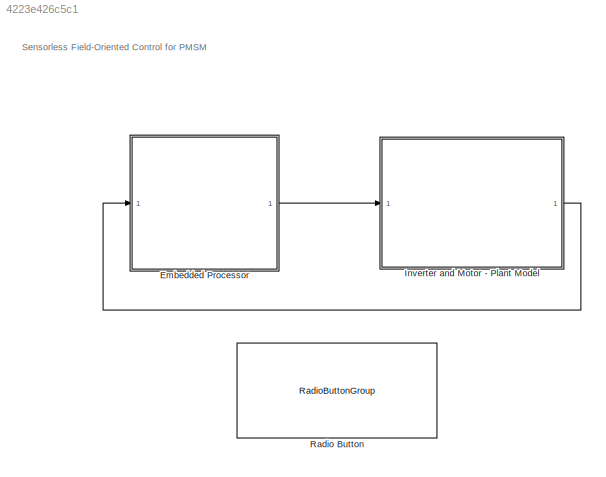
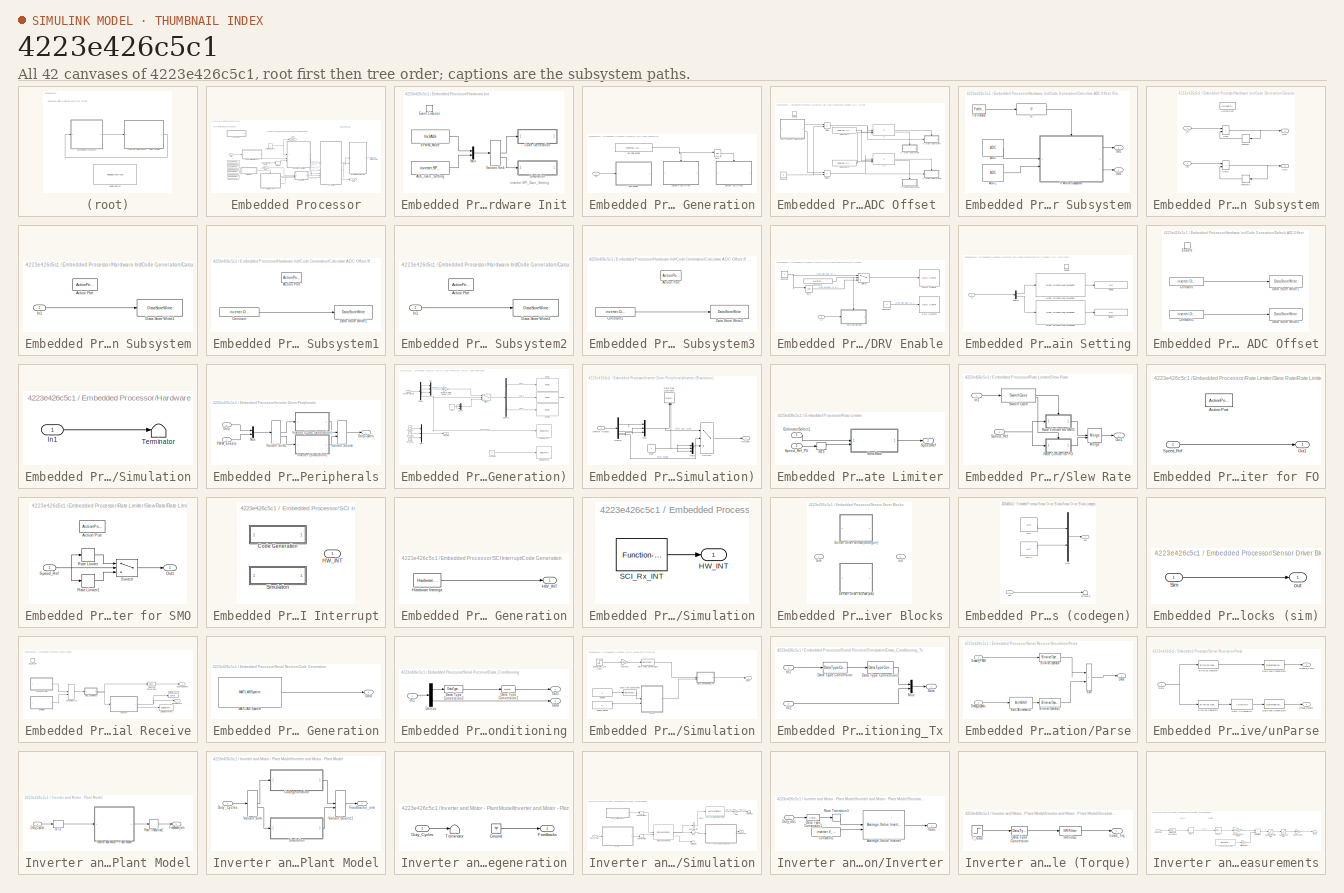
[diagram: thumbnail index - all 42 canvases of the model, root first then tree order]
MODEL slx_4223e426c5c1
KIND model
CONFIG AbsTol = auto
CONFIG EnableMultiTasking = off
CONFIG FixedStep = auto
CONFIG MaxStep = auto
CONFIG MinStep = auto
CONFIG RelTol = 1e-3
CONFIG SampleTimeConstraint = Unconstrained
CONFIG SolverName = FixedStepAuto
CONFIG StartTime = 0.0
CONFIG StopTime = 10.0
WORKSPACE source: external: MATLAB File  (data not in archive)
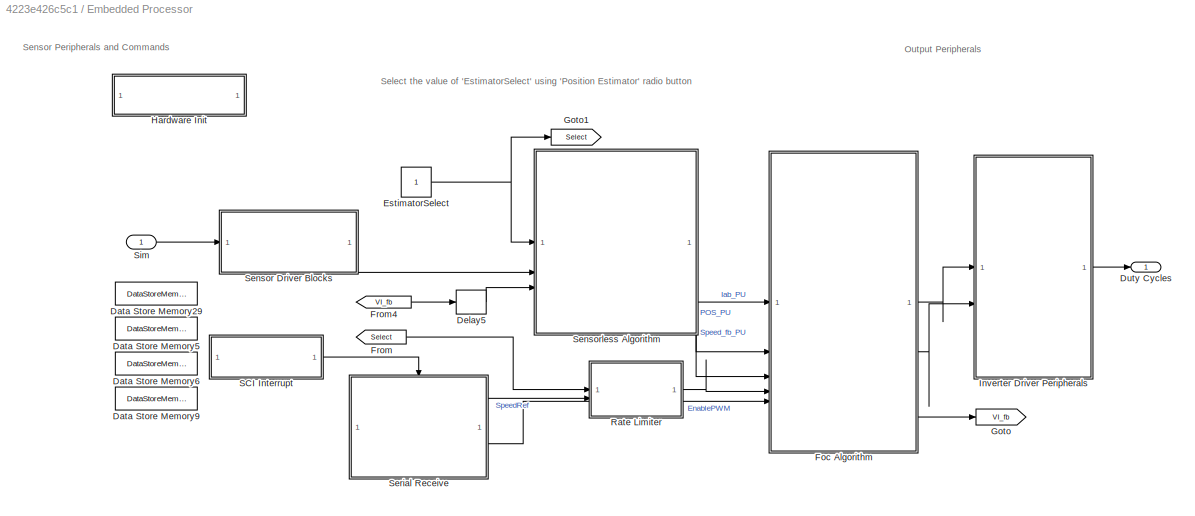
BLOCK [SubSystem] Embedded Processor
BLOCK [DataStoreMemory] Embedded Processor/Data Store Memory29
  DataStoreName = Enable
  InitialValue = 1
  OutDataTypeStr = boolean
  ReadBeforeWriteMsg = warning
  ShowAdditionalParam = off
  WriteAfterReadMsg = warning
  WriteAfterWriteMsg = warning
BLOCK [DataStoreMemory] Embedded Processor/Data Store Memory5
  DataStoreName = IaOffset
  InitialValue = inverter.CtSensAOffset
  ShowAdditionalParam = off
BLOCK [DataStoreMemory] Embedded Processor/Data Store Memory6
  DataStoreName = IbOffset
  InitialValue = inverter.CtSensBOffset
  ShowAdditionalParam = off
BLOCK [DataStoreMemory] Embedded Processor/Data Store Memory9
  DataStoreName = Debug_signals
  InitialValue = 1
  OutDataTypeStr = uint16
  ReadBeforeWriteMsg = warning
  ShowAdditionalParam = off
  WriteAfterReadMsg = warning
  WriteAfterWriteMsg = warning
BLOCK [Delay] Embedded Processor/Delay5
  DelayLength = 1
  InputPortMap = u0
BLOCK [Outport] Embedded Processor/Duty Cycles
BLOCK [Constant] Embedded Processor/EstimatorSelect
BLOCK [SubSystem] Embedded Processor/Foc  Algorithm
  ReferencedSubsystem = foc_sensorless_algorithm
BLOCK [From] Embedded Processor/From
  GotoTag = Select
BLOCK [From] Embedded Processor/From4
  GotoTag = VI_fb
BLOCK [Goto] Embedded Processor/Goto
  GotoTag = VI_fb
BLOCK [Goto] Embedded Processor/Goto1
  GotoTag = Select
BLOCK [SubSystem] Embedded Processor/Hardware Init
  TreatAsAtomicUnit = on
BLOCK [Constant] Embedded Processor/Hardware Init/6PWM_Mode
  OutDataTypeStr = uint16
  Priority = 1000
  SampleTime = -1
  Value = 0x3A16
BLOCK [Constant] Embedded Processor/Hardware Init/ADC_Gain_Setting
  OutDataTypeStr = uint16
  Priority = 1000
  SampleTime = -1
  Value = inverter.SPI_Gain_Setting
BLOCK [SubSystem] Embedded Processor/Hardware Init/Code Generation
BLOCK [Constant] Embedded Processor/Hardware Init/Code Generation/ADC Calib Enable
  OutDataTypeStr = Inherit: Inherit via back propagation
  Value = inverter.ADCOffsetCalibEnable
BLOCK [SubSystem] Embedded Processor/Hardware Init/Code Generation/Calculate ADC Offset 
  Priority = 1001
  TreatAsAtomicUnit = on
BLOCK [Constant] Embedded Processor/Hardware Init/Code Generation/Calculate ADC Offset /Constant
  Value = 8
BLOCK [Constant] Embedded Processor/Hardware Init/Code Generation/Calculate ADC Offset /Constant1
  OutDataTypeStr = Inherit: Inherit via back propagation
  Value = inverter.CtSensOffsetMax
BLOCK [Constant] Embedded Processor/Hardware Init/Code Generation/Calculate ADC Offset /Constant2
  OutDataTypeStr = Inherit: Inherit via back propagation
  Value = inverter.CtSensOffsetMin
BLOCK [Product] Embedded Processor/Hardware Init/Code Generation/Calculate ADC Offset /Divide
  Inputs = */
  OutDataTypeStr = uint16
BLOCK [Product] Embedded Processor/Hardware Init/Code Generation/Calculate ADC Offset /Divide1
  Inputs = */
  OutDataTypeStr = uint16
BLOCK [EnablePort] Embedded Processor/Hardware Init/Code Generation/Calculate ADC Offset /Enable
BLOCK [SubSystem] Embedded Processor/Hardware Init/Code Generation/Calculate ADC Offset /For Iterator Subsystem
  TreatAsAtomicUnit = on
BLOCK [Reference] Embedded Processor/Hardware Init/Code Generation/Calculate ADC Offset /For Iterator Subsystem/ADC  REF=peripheral_library_blocks/ADC
  SourceBlock = peripheral_library_blocks/ADC
  SourceType = ADC
BLOCK [Reference] Embedded Processor/Hardware Init/Code Generation/Calculate ADC Offset /For Iterator Subsystem/ADC1  REF=peripheral_library_blocks/ADC
  SourceBlock = peripheral_library_blocks/ADC
  SourceType = ADC
BLOCK [ForIterator] Embedded Processor/Hardware Init/Code Generation/Calculate ADC Offset /For Iterator Subsystem/For Iterator
  IterationLimit = 16
  IterationVariableDataType = uint16
BLOCK [If] Embedded Processor/Hardware Init/Code Generation/Calculate ADC Offset /For Iterator Subsystem/If
  IfExpression = u1 > 8
  ShowElse = off
BLOCK [SubSystem] Embedded Processor/Hardware Init/Code Generation/Calculate ADC Offset /For Iterator Subsystem/If Action Subsystem
  TreatAsAtomicUnit = on
BLOCK [ActionPort] Embedded Processor/Hardware Init/Code Generation/Calculate ADC Offset /For Iterator Subsystem/If Action Subsystem/Action Port
  ActionPortLabel = if(u1 > 8)
BLOCK [Inport] Embedded Processor/Hardware Init/Code Generation/Calculate ADC Offset /For Iterator Subsystem/If Action Subsystem/In1
BLOCK [Inport] Embedded Processor/Hardware Init/Code Generation/Calculate ADC Offset /For Iterator Subsystem/If Action Subsystem/In2
  Port = 2
BLOCK [Memory] Embedded Processor/Hardware Init/Code Generation/Calculate ADC Offset /For Iterator Subsystem/If Action Subsystem/Memory
  InheritSampleTime = on
  NameLocation = top
BLOCK [Memory] Embedded Processor/Hardware Init/Code Generation/Calculate ADC Offset /For Iterator Subsystem/If Action Subsystem/Memory1
  InheritSampleTime = on
  NameLocation = top
BLOCK [Outport] Embedded Processor/Hardware Init/Code Generation/Calculate ADC Offset /For Iterator Subsystem/If Action Subsystem/Out1
BLOCK [Outport] Embedded Processor/Hardware Init/Code Generation/Calculate ADC Offset /For Iterator Subsystem/If Action Subsystem/Out2
  Port = 2
BLOCK [Sum] Embedded Processor/Hardware Init/Code Generation/Calculate ADC Offset /For Iterator Subsystem/If Action Subsystem/Sum
  IconShape = rectangular
BLOCK [Sum] Embedded Processor/Hardware Init/Code Generation/Calculate ADC Offset /For Iterator Subsystem/If Action Subsystem/Sum1
  IconShape = rectangular
BLOCK [Outport] Embedded Processor/Hardware Init/Code Generation/Calculate ADC Offset /For Iterator Subsystem/Out1
BLOCK [Outport] Embedded Processor/Hardware Init/Code Generation/Calculate ADC Offset /For Iterator Subsystem/Out2
  Port = 2
BLOCK [If] Embedded Processor/Hardware Init/Code Generation/Calculate ADC Offset /If
  IfExpression = u1 > u3 & u1 < u2
  NumInputs = 3
BLOCK [SubSystem] Embedded Processor/Hardware Init/Code Generation/Calculate ADC Offset /If Action Subsystem
  TreatAsAtomicUnit = on
BLOCK [ActionPort] Embedded Processor/Hardware Init/Code Generation/Calculate ADC Offset /If Action Subsystem/Action Port
  ActionPortLabel = if(u1 > u3 & u1 < u2)
BLOCK [DataStoreWrite] Embedded Processor/Hardware Init/Code Generation/Calculate ADC Offset /If Action Subsystem/Data Store Write1
  DataStoreName = IaOffset
  IndexOptions = Index vector (dialog)
  Indices = 1
  OutputSizes = 1
BLOCK [Inport] Embedded Processor/Hardware Init/Code Generation/Calculate ADC Offset /If Action Subsystem/In1
BLOCK [SubSystem] Embedded Processor/Hardware Init/Code Generation/Calculate ADC Offset /If Action Subsystem1
  TreatAsAtomicUnit = on
BLOCK [ActionPort] Embedded Processor/Hardware Init/Code Generation/Calculate ADC Offset /If Action Subsystem1/Action Port
  ActionPortLabel = else
BLOCK [Constant] Embedded Processor/Hardware Init/Code Generation/Calculate ADC Offset /If Action Subsystem1/Constant
  OutDataTypeStr = Inherit: Inherit via back propagation
  Value = inverter.CtSensAOffset
BLOCK [DataStoreWrite] Embedded Processor/Hardware Init/Code Generation/Calculate ADC Offset /If Action Subsystem1/Data Store Write1
  DataStoreName = IaOffset
  IndexOptions = Index vector (dialog)
  Indices = 1
  OutputSizes = 1
BLOCK [SubSystem] Embedded Processor/Hardware Init/Code Generation/Calculate ADC Offset /If Action Subsystem2
  TreatAsAtomicUnit = on
BLOCK [ActionPort] Embedded Processor/Hardware Init/Code Generation/Calculate ADC Offset /If Action Subsystem2/Action Port
  ActionPortLabel = if(u1 > u3 & u1 < u2)
BLOCK [DataStoreWrite] Embedded Processor/Hardware Init/Code Generation/Calculate ADC Offset /If Action Subsystem2/Data Store Write2
  DataStoreName = IbOffset
  IndexOptions = Index vector (dialog)
  Indices = 1
  OutputSizes = 1
BLOCK [Inport] Embedded Processor/Hardware Init/Code Generation/Calculate ADC Offset /If Action Subsystem2/In1
BLOCK [SubSystem] Embedded Processor/Hardware Init/Code Generation/Calculate ADC Offset /If Action Subsystem3
  TreatAsAtomicUnit = on
BLOCK [ActionPort] Embedded Processor/Hardware Init/Code Generation/Calculate ADC Offset /If Action Subsystem3/Action Port
  ActionPortLabel = else
BLOCK [Constant] Embedded Processor/Hardware Init/Code Generation/Calculate ADC Offset /If Action Subsystem3/Constant1
  OutDataTypeStr = Inherit: Inherit via back propagation
  Value = inverter.CtSensBOffset
BLOCK [DataStoreWrite] Embedded Processor/Hardware Init/Code Generation/Calculate ADC Offset /If Action Subsystem3/Data Store Write2
  DataStoreName = IbOffset
  IndexOptions = Index vector (dialog)
  Indices = 1
  OutputSizes = 1
BLOCK [If] Embedded Processor/Hardware Init/Code Generation/Calculate ADC Offset /If1
  IfExpression = u1 > u3 & u1 < u2
  NumInputs = 3
BLOCK [SubSystem] Embedded Processor/Hardware Init/Code Generation/DRV Enable
  Priority = 1
BLOCK [SubSystem] Embedded Processor/Hardware Init/Code Generation/DRV Enable/ADC Gain Setting
BLOCK [Demux] Embedded Processor/Hardware Init/Code Generation/DRV Enable/ADC Gain Setting/Demux
  Outputs = 2
BLOCK [Display] Embedded Processor/Hardware Init/Code Generation/DRV Enable/ADC Gain Setting/Display
  Decimation = 1
  Format = hex (Stored Integer)
BLOCK [Display] Embedded Processor/Hardware Init/Code Generation/DRV Enable/ADC Gain Setting/Display1
  Decimation = 1
  Format = hex (Stored Integer)
BLOCK [EnablePort] Embedded Processor/Hardware Init/Code Generation/DRV Enable/ADC Gain Setting/Enable
BLOCK [Inport] Embedded Processor/Hardware Init/Code Generation/DRV Enable/ADC Gain Setting/In
BLOCK [Reference] Embedded Processor/Hardware Init/Code Generation/DRV Enable/ADC Gain Setting/MCSPI CONTROLLER TRANSFER  REF=peripheral_library_blocks/MCSPI CONTROLLER TRANSFER
  SourceBlock = peripheral_library_blocks/MCSPI CONTROLLER TRANSFER
  SourceType = MCSPI_CONTROLLER_TRANSFER
BLOCK [Reference] Embedded Processor/Hardware Init/Code Generation/DRV Enable/ADC Gain Setting/MCSPI CONTROLLER TRANSFER1  REF=peripheral_library_blocks/MCSPI CONTROLLER TRANSFER
  SourceBlock = peripheral_library_blocks/MCSPI CONTROLLER TRANSFER
  SourceType = MCSPI_CONTROLLER_TRANSFER
BLOCK [Constant] Embedded Processor/Hardware Init/Code Generation/DRV Enable/Constant
  OutDataTypeStr = Inherit: Inherit via back propagation
BLOCK [Constant] Embedded Processor/Hardware Init/Code Generation/DRV Enable/Constant1
  Value = inverter.EnableLogic
BLOCK [Constant] Embedded Processor/Hardware Init/Code Generation/DRV Enable/Constant2
  OutDataTypeStr = Inherit: Inherit via back propagation
BLOCK [Reference] Embedded Processor/Hardware Init/Code Generation/DRV Enable/GPIO OUTPUT  REF=peripheral_library_blocks/GPIO OUTPUT
  SourceBlock = peripheral_library_blocks/GPIO OUTPUT
  SourceType = GPIO_OUT
BLOCK [Reference] Embedded Processor/Hardware Init/Code Generation/DRV Enable/GPIO OUTPUT1  REF=peripheral_library_blocks/GPIO OUTPUT
  SourceBlock = peripheral_library_blocks/GPIO OUTPUT
  SourceType = GPIO_OUT
BLOCK [Inport] Embedded Processor/Hardware Init/Code Generation/DRV Enable/In
BLOCK [Logic] Embedded Processor/Hardware Init/Code Generation/DRV Enable/NOT
  AllPortsSameDT = off
  IconShape = distinctive
  Operator = NOT
  OutDataTypeStr = boolean
BLOCK [Switch] Embedded Processor/Hardware Init/Code Generation/DRV Enable/Switch
  Criteria = u2 > Threshold
  InputSameDT = off
  SaturateOnIntegerOverflow = off
BLOCK [SubSystem] Embedded Processor/Hardware Init/Code Generation/Default ADC Offset
  Priority = 1001
  TreatAsAtomicUnit = on
BLOCK [Constant] Embedded Processor/Hardware Init/Code Generation/Default ADC Offset/Constant
  OutDataTypeStr = Inherit: Inherit via back propagation
  Value = inverter.CtSensAOffset
BLOCK [Constant] Embedded Processor/Hardware Init/Code Generation/Default ADC Offset/Constant1
  OutDataTypeStr = Inherit: Inherit via back propagation
  Value = inverter.CtSensBOffset
BLOCK [DataStoreWrite] Embedded Processor/Hardware Init/Code Generation/Default ADC Offset/Data Store Write1
  DataStoreName = IaOffset
  IndexOptions = Index vector (dialog)
  Indices = 1
  OutputSizes = 1
BLOCK [DataStoreWrite] Embedded Processor/Hardware Init/Code Generation/Default ADC Offset/Data Store Write2
  DataStoreName = IbOffset
  IndexOptions = Index vector (dialog)
  Indices = 1
  OutputSizes = 1
BLOCK [EnablePort] Embedded Processor/Hardware Init/Code Generation/Default ADC Offset/Enable
BLOCK [Inport] Embedded Processor/Hardware Init/Code Generation/In
BLOCK [Logic] Embedded Processor/Hardware Init/Code Generation/NOT
  AllPortsSameDT = off
  IconShape = distinctive
  Operator = NOT
  OutDataTypeStr = boolean
BLOCK [EventListener] Embedded Processor/Hardware Init/Event Listener
  DisableCoverage = on
  EventName = reset
BLOCK [Mux] Embedded Processor/Hardware Init/Mux
  DisplayOption = bar
  Inputs = 2
BLOCK [SubSystem] Embedded Processor/Hardware Init/Simulation
BLOCK [Inport] Embedded Processor/Hardware Init/Simulation/In1
BLOCK [Terminator] Embedded Processor/Hardware Init/Simulation/Terminator
BLOCK [VariantSink] Embedded Processor/Hardware Init/Variant Sink
  VariantControlMode = sim codegen switching
BLOCK [SubSystem] Embedded Processor/Inverter Driver Peripherals
  RTWSystemCode = Nonreusable function
  TreatAsAtomicUnit = on
BLOCK [Inport] Embedded Processor/Inverter Driver Peripherals/Duty
BLOCK [Outport] Embedded Processor/Inverter Driver Peripherals/Duty Cycles
  InitialOutput = 0
  VectorParamsAs1DForOutWhenUnconnected = off
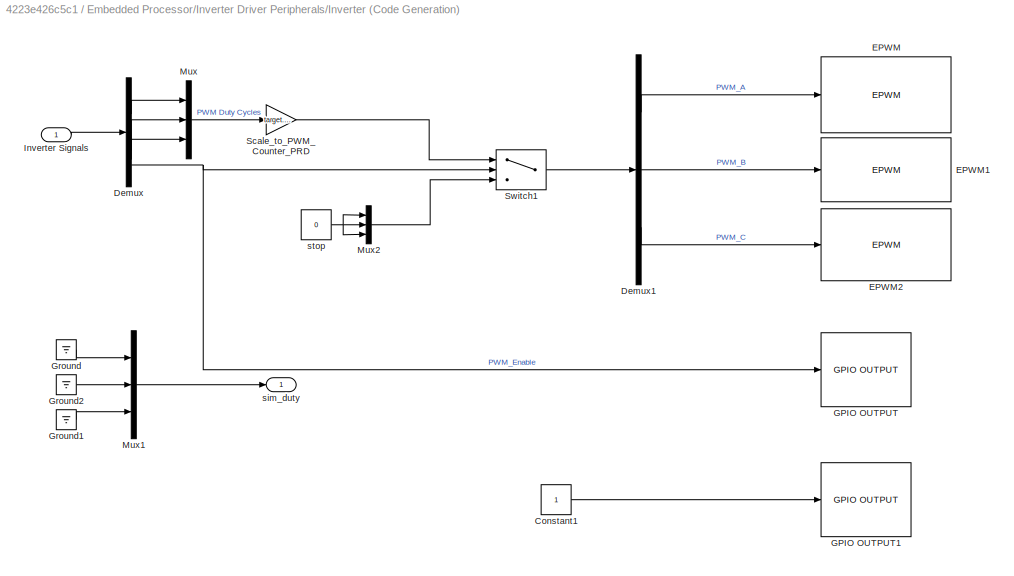
BLOCK [SubSystem] Embedded Processor/Inverter Driver Peripherals/Inverter (Code Generation)
  VariantControl = Choice
BLOCK [Constant] Embedded Processor/Inverter Driver Peripherals/Inverter (Code Generation)/Constant1
BLOCK [Demux] Embedded Processor/Inverter Driver Peripherals/Inverter (Code Generation)/Demux
BLOCK [Demux] Embedded Processor/Inverter Driver Peripherals/Inverter (Code Generation)/Demux1
  Outputs = 3
BLOCK [Reference] Embedded Processor/Inverter Driver Peripherals/Inverter (Code Generation)/EPWM  REF=peripheral_library_blocks/EPWM
  SourceBlock = peripheral_library_blocks/EPWM
  SourceType = EPWM
BLOCK [Reference] Embedded Processor/Inverter Driver Peripherals/Inverter (Code Generation)/EPWM1  REF=peripheral_library_blocks/EPWM
  SourceBlock = peripheral_library_blocks/EPWM
  SourceType = EPWM
BLOCK [Reference] Embedded Processor/Inverter Driver Peripherals/Inverter (Code Generation)/EPWM2  REF=peripheral_library_blocks/EPWM
  SourceBlock = peripheral_library_blocks/EPWM
  SourceType = EPWM
BLOCK [Reference] Embedded Processor/Inverter Driver Peripherals/Inverter (Code Generation)/GPIO OUTPUT  REF=peripheral_library_blocks/GPIO OUTPUT
  SourceBlock = peripheral_library_blocks/GPIO OUTPUT
  SourceType = GPIO_OUT
BLOCK [Reference] Embedded Processor/Inverter Driver Peripherals/Inverter (Code Generation)/GPIO OUTPUT1  REF=peripheral_library_blocks/GPIO OUTPUT
  SourceBlock = peripheral_library_blocks/GPIO OUTPUT
  SourceType = GPIO_OUT
BLOCK [Ground] Embedded Processor/Inverter Driver Peripherals/Inverter (Code Generation)/Ground
BLOCK [Ground] Embedded Processor/Inverter Driver Peripherals/Inverter (Code Generation)/Ground1
BLOCK [Ground] Embedded Processor/Inverter Driver Peripherals/Inverter (Code Generation)/Ground2
BLOCK [Inport] Embedded Processor/Inverter Driver Peripherals/Inverter (Code Generation)/Inverter Signals
BLOCK [Mux] Embedded Processor/Inverter Driver Peripherals/Inverter (Code Generation)/Mux
  DisplayOption = bar
  Inputs = 3
BLOCK [Mux] Embedded Processor/Inverter Driver Peripherals/Inverter (Code Generation)/Mux1
  DisplayOption = bar
  Inputs = 3
BLOCK [Mux] Embedded Processor/Inverter Driver Peripherals/Inverter (Code Generation)/Mux2
  DisplayOption = bar
  Inputs = 3
BLOCK [Gain] Embedded Processor/Inverter Driver Peripherals/Inverter (Code Generation)/Scale_to_PWM_Counter_PRD
  Gain = target.PWM_Counter_Period
  OutDataTypeStr = uint16
  RndMeth = Simplest
BLOCK [Switch] Embedded Processor/Inverter Driver Peripherals/Inverter (Code Generation)/Switch1
  InputSameDT = off
  SaturateOnIntegerOverflow = off
  Threshold = 0.5
BLOCK [Outport] Embedded Processor/Inverter Driver Peripherals/Inverter (Code Generation)/sim_duty
  VectorParamsAs1DForOutWhenUnconnected = off
BLOCK [Constant] Embedded Processor/Inverter Driver Peripherals/Inverter (Code Generation)/stop
  OutDataTypeStr = uint16
  Value = 0
BLOCK [SubSystem] Embedded Processor/Inverter Driver Peripherals/Inverter (Simulation)
  VariantControl = (sim)
BLOCK [DataTypeDuplicate] Embedded Processor/Inverter Driver Peripherals/Inverter (Simulation)/Data Type Duplicate
BLOCK [Demux] Embedded Processor/Inverter Driver Peripherals/Inverter (Simulation)/Demux
BLOCK [Inport] Embedded Processor/Inverter Driver Peripherals/Inverter (Simulation)/Inverter Signals
BLOCK [Mux] Embedded Processor/Inverter Driver Peripherals/Inverter (Simulation)/Mux
  DisplayOption = bar
  Inputs = 3
BLOCK [Mux] Embedded Processor/Inverter Driver Peripherals/Inverter (Simulation)/Mux2
  DisplayOption = bar
  Inputs = 3
BLOCK [Switch] Embedded Processor/Inverter Driver Peripherals/Inverter (Simulation)/Switch1
  InputSameDT = off
  RndMeth = Simplest
  SaturateOnIntegerOverflow = off
  Threshold = 0.5
BLOCK [Outport] Embedded Processor/Inverter Driver Peripherals/Inverter (Simulation)/sim_duty
  VectorParamsAs1DForOutWhenUnconnected = off
BLOCK [Constant] Embedded Processor/Inverter Driver Peripherals/Inverter (Simulation)/stop
  OutDataTypeStr = Inherit: Inherit via back propagation
  Value = 0
BLOCK [Mux] Embedded Processor/Inverter Driver Peripherals/Mux
  DisplayOption = bar
  Inputs = 2
BLOCK [Inport] Embedded Processor/Inverter Driver Peripherals/PWM_Enable
  Port = 2
BLOCK [VariantSink] Embedded Processor/Inverter Driver Peripherals/Variant Sink1
  VariantControlMode = sim codegen switching
BLOCK [VariantSource] Embedded Processor/Inverter Driver Peripherals/Variant Source
  VariantControlMode = sim codegen switching
BLOCK [SubSystem] Embedded Processor/Rate Limiter
  SystemSampleTime = Ts_speed
BLOCK [Inport] Embedded Processor/Rate Limiter/EstimatorSelect1
BLOCK [RateTransition] Embedded Processor/Rate Limiter/RT3
  Deterministic = off
  NameLocation = top
  OutPortSampleTime = Ts_speed
BLOCK [SubSystem] Embedded Processor/Rate Limiter/Slew Rate
  SystemSampleTime = Ts_speed
  TreatAsAtomicUnit = on
BLOCK [Inport] Embedded Processor/Rate Limiter/Slew Rate/In1
BLOCK [Merge] Embedded Processor/Rate Limiter/Slew Rate/Merge
BLOCK [Outport] Embedded Processor/Rate Limiter/Slew Rate/Out1
BLOCK [SubSystem] Embedded Processor/Rate Limiter/Slew Rate/Rate Limiter for FO
  TreatAsAtomicUnit = on
BLOCK [ActionPort] Embedded Processor/Rate Limiter/Slew Rate/Rate Limiter for FO/Action Port
  ActionPortLabel = case [ 1 ]:
BLOCK [Outport] Embedded Processor/Rate Limiter/Slew Rate/Rate Limiter for FO/Out1
BLOCK [Inport] Embedded Processor/Rate Limiter/Slew Rate/Rate Limiter for FO/Speed_Ref
BLOCK [SubSystem] Embedded Processor/Rate Limiter/Slew Rate/Rate Limiter for SMO
  TreatAsAtomicUnit = on
BLOCK [ActionPort] Embedded Processor/Rate Limiter/Slew Rate/Rate Limiter for SMO/Action Port
  ActionPortLabel = case [ 0 ]:
BLOCK [Outport] Embedded Processor/Rate Limiter/Slew Rate/Rate Limiter for SMO/Out1
BLOCK [RateLimiter] Embedded Processor/Rate Limiter/Slew Rate/Rate Limiter for SMO/Rate Limiter
  FallingSlewLimit = -acceleration
  InitialCondition = Speed_openLoop_PU
  RisingSlewLimit = acceleration
  SampleTimeMode = inherited
BLOCK [RateLimiter] Embedded Processor/Rate Limiter/Slew Rate/Rate Limiter for SMO/Rate Limiter1
  FallingSlewLimit = -acceleration
  InitialCondition = -Speed_openLoop_PU
  RisingSlewLimit = acceleration
  SampleTimeMode = inherited
BLOCK [Inport] Embedded Processor/Rate Limiter/Slew Rate/Rate Limiter for SMO/Speed_Ref
BLOCK [Switch] Embedded Processor/Rate Limiter/Slew Rate/Rate Limiter for SMO/Switch
  InputSameDT = off
  SaturateOnIntegerOverflow = off
BLOCK [Inport] Embedded Processor/Rate Limiter/Slew Rate/Speed_Ref
  Port = 2
BLOCK [SwitchCase] Embedded Processor/Rate Limiter/Slew Rate/Switch Case
  CaseConditions = {0,1}
  ShowDefaultCase = off
BLOCK [Outport] Embedded Processor/Rate Limiter/SpeedRef
BLOCK [Inport] Embedded Processor/Rate Limiter/Speed_Ref_PU
  Port = 2
BLOCK [SubSystem] Embedded Processor/SCI Interrupt
  Variant = on
  VariantControl = Choice
  VariantControlMode = sim codegen switching
BLOCK [SubSystem] Embedded Processor/SCI Interrupt/Code Generation
  VariantControl = (codegen)
BLOCK [Outport] Embedded Processor/SCI Interrupt/Code Generation/HW_INT
  VectorParamsAs1DForOutWhenUnconnected = off
BLOCK [Reference] Embedded Processor/SCI Interrupt/Code Generation/Hardware Interrupt  REF=HWI_lib/Hardware Interrupt
  SourceBlock = HWI_lib/Hardware Interrupt
  SourceProductName = Embedded Coder Support Package for AM263x - HWI Block
BLOCK [Outport] Embedded Processor/SCI Interrupt/HW_INT
  OutputFunctionCall = on
BLOCK [SubSystem] Embedded Processor/SCI Interrupt/Simulation
  VariantControl = (sim)
BLOCK [Outport] Embedded Processor/SCI Interrupt/Simulation/HW_INT
BLOCK [Reference] Embedded Processor/SCI Interrupt/Simulation/SCI_Rx_INT  REF=simulink/Ports &
Subsystems/Function-Call
Generator
  SourceBlock = simulink/Ports &\nSubsystems/Function-Call\nGenerator
  SourceType = Function-Call Generator
BLOCK [SubSystem] Embedded Processor/Sensor Driver Blocks
  Variant = on
  VariantControlMode = sim codegen switching
BLOCK [SubSystem] Embedded Processor/Sensor Driver Blocks/Sensor Driver Blocks (codegen)
  RTWSystemCode = Nonreusable function
  TreatAsAtomicUnit = on
  VariantControl = (codegen)
BLOCK [Reference] Embedded Processor/Sensor Driver Blocks/Sensor Driver Blocks (codegen)/ADC  REF=peripheral_library_blocks/ADC
  SourceBlock = peripheral_library_blocks/ADC
  SourceType = ADC
BLOCK [Reference] Embedded Processor/Sensor Driver Blocks/Sensor Driver Blocks (codegen)/ADC1  REF=peripheral_library_blocks/ADC
  SourceBlock = peripheral_library_blocks/ADC
  SourceType = ADC
BLOCK [Mux] Embedded Processor/Sensor Driver Blocks/Sensor Driver Blocks (codegen)/Mux1
  DisplayOption = bar
  Inputs = 2
BLOCK [Inport] Embedded Processor/Sensor Driver Blocks/Sensor Driver Blocks (codegen)/Sim
BLOCK [Terminator] Embedded Processor/Sensor Driver Blocks/Sensor Driver Blocks (codegen)/Terminator
BLOCK [Outport] Embedded Processor/Sensor Driver Blocks/Sensor Driver Blocks (codegen)/out
BLOCK [SubSystem] Embedded Processor/Sensor Driver Blocks/Sensor Driver Blocks (sim)
  VariantControl = (sim)
BLOCK [Inport] Embedded Processor/Sensor Driver Blocks/Sensor Driver Blocks (sim)/Sim
BLOCK [Outport] Embedded Processor/Sensor Driver Blocks/Sensor Driver Blocks (sim)/out
BLOCK [Inport] Embedded Processor/Sensor Driver Blocks/Sim
BLOCK [Outport] Embedded Processor/Sensor Driver Blocks/out
BLOCK [SubSystem] Embedded Processor/Sensorless Algorithm
  RTWSystemCode = Nonreusable function
  ReferencedSubsystem = sensorless_algorithm
  TreatAsAtomicUnit = on
BLOCK [SubSystem] Embedded Processor/Serial Receive
  RTWMemSecFuncExecute = code_ramfuncs
  SystemSampleTime = 1e-3
BLOCK [SubSystem] Embedded Processor/Serial Receive/Code Generation
BLOCK [Outport] Embedded Processor/Serial Receive/Code Generation/Data
BLOCK [MATLABSystem] Embedded Processor/Serial Receive/Code Generation/MATLAB System
  DataType = Unsigned int16
  MaskDisplay = disp('UART_READ');\nport_label('output',1,'UARTData');
  MaskType = UART_READ
  OutputDataLength = 2
  SampleTime = -1
  System = UART_READ
  UARTPort = UART0
BLOCK [DataStoreWrite] Embedded Processor/Serial Receive/Data Store Write
  DataStoreName = Enable
  IndexOptions = Index vector (dialog)
  Indices = 1
  OutputSizes = 1
BLOCK [DataStoreWrite] Embedded Processor/Serial Receive/Data Store Write1
  DataStoreName = Debug_signals
  IndexOptions = Index vector (dialog)
  Indices = 1
  OutputSizes = 1
BLOCK [DataTypeConversion] Embedded Processor/Serial Receive/Data Type Conversion1
  OutDataTypeStr = dataType
  RndMeth = Simplest
  SaturateOnIntegerOverflow = off
BLOCK [SubSystem] Embedded Processor/Serial Receive/Data_Conditioning
BLOCK [Outport] Embedded Processor/Serial Receive/Data_Conditioning/Data
  Port = 2
  VectorParamsAs1DForOutWhenUnconnected = off
BLOCK [DataTypeConversion] Embedded Processor/Serial Receive/Data_Conditioning/Data Type Conversion1
  OutDataTypeStr = single
  RndMeth = Simplest
  SaturateOnIntegerOverflow = off
BLOCK [DataTypeConversion] Embedded Processor/Serial Receive/Data_Conditioning/Data Type Conversion2
  ConvertRealWorld = Stored Integer (SI)
  OutDataTypeStr = fixdt(1,16,12)
  RndMeth = Simplest
  SaturateOnIntegerOverflow = off
BLOCK [Demux] Embedded Processor/Serial Receive/Data_Conditioning/Demux
  Outputs = 2
BLOCK [Inport] Embedded Processor/Serial Receive/Data_Conditioning/In1
BLOCK [Outport] Embedded Processor/Serial Receive/Data_Conditioning/Out1
  VectorParamsAs1DForOutWhenUnconnected = off
BLOCK [Outport] Embedded Processor/Serial Receive/Desired Speed
  VectorParamsAs1DForOutWhenUnconnected = off
BLOCK [Outport] Embedded Processor/Serial Receive/EnablePWM
  Port = 2
BLOCK [TriggerPort] Embedded Processor/Serial Receive/SCI_Rx_INT
  StatesWhenEnabling = held
  TriggerType = function-call
  VariantControl = Variant
BLOCK [SubSystem] Embedded Processor/Serial Receive/Simulation
BLOCK [Outport] Embedded Processor/Serial Receive/Simulation/Data
BLOCK [DataTypeConversion] Embedded Processor/Serial Receive/Simulation/Data Type Conversion2
  OutDataTypeStr = dataType
  RndMeth = Simplest
  SaturateOnIntegerOverflow = off
BLOCK [DataTypeConversion] Embedded Processor/Serial Receive/Simulation/Data Type Conversion4
  OutDataTypeStr = uint16
  RndMeth = Simplest
  SaturateOnIntegerOverflow = off
BLOCK [SubSystem] Embedded Processor/Serial Receive/Simulation/Data_Conditioning_Tx
  VariantControl = ~isequal(dataType, 'single')
BLOCK [Outport] Embedded Processor/Serial Receive/Simulation/Data_Conditioning_Tx/Data
BLOCK [DataTypeConversion] Embedded Processor/Serial Receive/Simulation/Data_Conditioning_Tx/Data Type Conversion
  OutDataTypeStr = fixdt(1,16,12)
  RndMeth = Simplest
  SaturateOnIntegerOverflow = off
BLOCK [DataTypeConversion] Embedded Processor/Serial Receive/Simulation/Data_Conditioning_Tx/Data Type Conversion3
  ConvertRealWorld = Stored Integer (SI)
  OutDataTypeStr = uint16
  RndMeth = Simplest
  SaturateOnIntegerOverflow = off
BLOCK [Inport] Embedded Processor/Serial Receive/Simulation/Data_Conditioning_Tx/In1
BLOCK [Inport] Embedded Processor/Serial Receive/Simulation/Data_Conditioning_Tx/In2
  Port = 2
BLOCK [Mux] Embedded Processor/Serial Receive/Simulation/Data_Conditioning_Tx/Mux
  DisplayOption = bar
  Inputs = 2
BLOCK [Constant] Embedded Processor/Serial Receive/Simulation/Debug_signals
  OutDataTypeStr = uint16
  SampleTime = -1
BLOCK [Constant] Embedded Processor/Serial Receive/Simulation/Enable
  OutDataTypeStr = dataType
  SampleTime = -1
BLOCK [SubSystem] Embedded Processor/Serial Receive/Simulation/Parse
BLOCK [Reference] Embedded Processor/Serial Receive/Simulation/Parse/Bitwise Operator  REF=simulink/Logic and Bit
Operations/Bitwise
Operator
  SourceBlock = simulink/Logic and Bit\nOperations/Bitwise\nOperator
  SourceType = Bitwise Operator
BLOCK [Reference] Embedded Processor/Serial Receive/Simulation/Parse/Bitwise Operator1  REF=simulink/Logic and Bit
Operations/Bitwise
Operator
  SourceBlock = simulink/Logic and Bit\nOperations/Bitwise\nOperator
  SourceType = Bitwise Operator
BLOCK [Outport] Embedded Processor/Serial Receive/Simulation/Parse/Data
BLOCK [Inport] Embedded Processor/Serial Receive/Simulation/Parse/Debug_signals
  Port = 2
BLOCK [Inport] Embedded Processor/Serial Receive/Simulation/Parse/Enable_PWM
BLOCK [ArithShift] Embedded Processor/Serial Receive/Simulation/Parse/Shift Arithmetic1
  BitShiftNumber = -4
  InputPortMap = u0
BLOCK [Sum] Embedded Processor/Serial Receive/Simulation/Parse/Sum
  IconShape = rectangular
  Inputs = |++
BLOCK [Step] Embedded Processor/Serial Receive/Simulation/Speed_Ref_CW (rpm)
  After = 0.5*pmsm.N_base
  Before = Speed_openLoop_PU*pmsm.N_base
  Time = T_Ref_openLoop
BLOCK [Gain] Embedded Processor/Serial Receive/Simulation/rpm2PU
  Gain = 1/pmsm.N_base
  OutDataTypeStr = Inherit: Same as input
  RndMeth = Simplest
BLOCK [VariantSource] Embedded Processor/Serial Receive/Variant Source
  VariantControlMode = sim codegen switching
BLOCK [SubSystem] Embedded Processor/Serial Receive/unParse
BLOCK [Reference] Embedded Processor/Serial Receive/unParse/Bitwise Operator  REF=simulink/Logic and Bit
Operations/Bitwise
Operator
  SourceBlock = simulink/Logic and Bit\nOperations/Bitwise\nOperator
  SourceType = Bitwise Operator
BLOCK [Reference] Embedded Processor/Serial Receive/unParse/Bitwise Operator1  REF=simulink/Logic and Bit
Operations/Bitwise
Operator
  SourceBlock = simulink/Logic and Bit\nOperations/Bitwise\nOperator
  SourceType = Bitwise Operator
BLOCK [Inport] Embedded Processor/Serial Receive/unParse/Data
BLOCK [DataTypeConversion] Embedded Processor/Serial Receive/unParse/Data Type Conversion3
  OutDataTypeStr = boolean
  RndMeth = Simplest
  SaturateOnIntegerOverflow = off
BLOCK [DataTypeConversion] Embedded Processor/Serial Receive/unParse/Data Type Conversion4
  NameLocation = left
  OutDataTypeStr = uint16
  RndMeth = Simplest
  SaturateOnIntegerOverflow = off
BLOCK [Outport] Embedded Processor/Serial Receive/unParse/Debug_signals
  Port = 2
BLOCK [Outport] Embedded Processor/Serial Receive/unParse/Enable_PWM
BLOCK [ArithShift] Embedded Processor/Serial Receive/unParse/Shift Arithmetic1
  BitShiftNumber = 4
  InputPortMap = u0
BLOCK [Inport] Embedded Processor/Sim
BLOCK [SubSystem] Inverter and Motor - Plant Model
  RTWSystemCode = Reusable function
BLOCK [Inport] Inverter and Motor - Plant Model/Duty_Cycles
BLOCK [Outport] Inverter and Motor - Plant Model/Feedbacks_sim
  VectorParamsAs1DForOutWhenUnconnected = off
BLOCK [SubSystem] Inverter and Motor - Plant Model/Inverter and Motor - Plant Model
  RTWSystemCode = Reusable function
BLOCK [SubSystem] Inverter and Motor - Plant Model/Inverter and Motor - Plant Model/Codegeneration
BLOCK [Inport] Inverter and Motor - Plant Model/Inverter and Motor - Plant Model/Codegeneration/Duty_Cycles
BLOCK [Outport] Inverter and Motor - Plant Model/Inverter and Motor - Plant Model/Codegeneration/Feedbacks
  VectorParamsAs1DForOutWhenUnconnected = off
BLOCK [Ground] Inverter and Motor - Plant Model/Inverter and Motor - Plant Model/Codegeneration/Ground
BLOCK [Terminator] Inverter and Motor - Plant Model/Inverter and Motor - Plant Model/Codegeneration/Terminator
BLOCK [Inport] Inverter and Motor - Plant Model/Inverter and Motor - Plant Model/Duty_Cycles
BLOCK [Outport] Inverter and Motor - Plant Model/Inverter and Motor - Plant Model/Feedbacks_sim
  VectorParamsAs1DForOutWhenUnconnected = off
BLOCK [SubSystem] Inverter and Motor - Plant Model/Inverter and Motor - Plant Model/Simulation
BLOCK [BusSelector] Inverter and Motor - Plant Model/Inverter and Motor - Plant Model/Simulation/Bus Selector
  OutputSignals = MtrPos
BLOCK [Inport] Inverter and Motor - Plant Model/Inverter and Motor - Plant Model/Simulation/Duty_Cycles
BLOCK [Outport] Inverter and Motor - Plant Model/Inverter and Motor - Plant Model/Simulation/Feedbacks
  VectorParamsAs1DForOutWhenUnconnected = off
BLOCK [Gain] Inverter and Motor - Plant Model/Inverter and Motor - Plant Model/Simulation/Gain
  Gain = 1/(2*pi)
  OutDataTypeStr = Inherit: Same as input
BLOCK [SubSystem] Inverter and Motor - Plant Model/Inverter and Motor - Plant Model/Simulation/Inverter
BLOCK [Reference] Inverter and Motor - Plant Model/Inverter and Motor - Plant Model/Simulation/Inverter/Average-Value Inverter  REF=mcbplantlib/Average-Value Inverter
  SourceBlock = mcbplantlib/Average-Value Inverter
  SourceType = Average Value Inverter
BLOCK [Constant] Inverter and Motor - Plant Model/Inverter and Motor - Plant Model/Simulation/Inverter/Constant2
  OutDataTypeStr = single
  SampleTime = -1
  Value = inverter.V_dc
BLOCK [DataTypeConversion] Inverter and Motor - Plant Model/Inverter and Motor - Plant Model/Simulation/Inverter/Data Type Conversion1
  OutDataTypeStr = single
  RndMeth = Simplest
  SaturateOnIntegerOverflow = off
BLOCK [Inport] Inverter and Motor - Plant Model/Inverter and Motor - Plant Model/Simulation/Inverter/Duty_abc
BLOCK [RateTransition] Inverter and Motor - Plant Model/Inverter and Motor - Plant Model/Simulation/Inverter/Rate Transition3
  Deterministic = off
  OutPortSampleTime = Ts_inverter
BLOCK [Outport] Inverter and Motor - Plant Model/Inverter and Motor - Plant Model/Simulation/Inverter/Vabc
  VectorParamsAs1DForOutWhenUnconnected = off
BLOCK [SubSystem] Inverter and Motor - Plant Model/Inverter and Motor - Plant Model/Simulation/Load_Profile (Torque)
BLOCK [DataTypeConversion] Inverter and Motor - Plant Model/Inverter and Motor - Plant Model/Simulation/Load_Profile (Torque)/Data Type Conversion
  OutDataTypeStr = single
  RndMeth = Floor
  SaturateOnIntegerOverflow = off
BLOCK [Reference] Inverter and Motor - Plant Model/Inverter and Motor - Plant Model/Simulation/Load_Profile (Torque)/IIR Filter  REF=mcbcontrolslib/IIR Filter
  SourceBlock = mcbcontrolslib/IIR Filter
  SourceType = IIR Filter
BLOCK [Outport] Inverter and Motor - Plant Model/Inverter and Motor - Plant Model/Simulation/Load_Profile (Torque)/Load_Trq
  VectorParamsAs1DForOutWhenUnconnected = off
BLOCK [Step] Inverter and Motor - Plant Model/Inverter and Motor - Plant Model/Simulation/Load_Profile (Torque)/T_load
  After = 0.5*pmsm.T_rated
  Before = 0.05*pmsm.T_rated
  SampleTime = Ts_simulink
  Time = 4
BLOCK [Reference] Inverter and Motor - Plant Model/Inverter and Motor - Plant Model/Simulation/Mechanical to Electrical Position  REF=mcbpositiondecoderlib/Mechanical to Electrical Position
  SourceBlock = mcbpositiondecoderlib/Mechanical to Electrical Position
  SourceType = Mechanical to Electrical Position
BLOCK [RateTransition] Inverter and Motor - Plant Model/Inverter and Motor - Plant Model/Simulation/RT1
  Deterministic = off
  OutPortSampleTime = Ts_simulink
BLOCK [RateTransition] Inverter and Motor - Plant Model/Inverter and Motor - Plant Model/Simulation/Rate Transition
  Deterministic = off
  OutPortSampleTime = Ts_motor
BLOCK [RateTransition] Inverter and Motor - Plant Model/Inverter and Motor - Plant Model/Simulation/Rate Transition1
  Deterministic = off
  OutPortSampleTime = Ts_motor
BLOCK [SubSystem] Inverter and Motor - Plant Model/Inverter and Motor - Plant Model/Simulation/Sensor_Measurements
BLOCK [Sum] Inverter and Motor - Plant Model/Inverter and Motor - Plant Model/Simulation/Sensor_Measurements/Add Offset
  IconShape = rectangular
  RndMeth = Simplest
BLOCK [DataTypeConversion] Inverter and Motor - Plant Model/Inverter and Motor - Plant Model/Simulation/Sensor_Measurements/Data Type Conversion4
  OutDataTypeStr = single
  RndMeth = Simplest
  SaturateOnIntegerOverflow = off
BLOCK [Delay] Inverter and Motor - Plant Model/Inverter and Motor - Plant Model/Simulation/Sensor_Measurements/Delay1
  DelayLength = PI_params.delay_Currents
  InputPortMap = u0
BLOCK [Gain] Inverter and Motor - Plant Model/Inverter and Motor - Plant Model/Simulation/Sensor_Measurements/Get ADC Count
  Gain = target.ADC_MaxCount/target.ADC_Vref
  OutDataTypeStr = uint16
  OutMax = target.ADC_MaxCount
  OutMin = 0
  RndMeth = Simplest
BLOCK [Gain] Inverter and Motor - Plant Model/Inverter and Motor - Plant Model/Simulation/Sensor_Measurements/Get Current Sense Voltage
  Gain = inverter.invertingAmp * inverter.ISenseVoltPerAmp
  OutDataTypeStr = Inherit: Same as input
  RndMeth = Simplest
BLOCK [Gain] Inverter and Motor - Plant Model/Inverter and Motor - Plant Model/Simulation/Sensor_Measurements/Offset voltage
  Gain = target.ADC_Vref / target.ADC_MaxCount
  RndMeth = Simplest
BLOCK [Inport] Inverter and Motor - Plant Model/Inverter and Motor - Plant Model/Simulation/Sensor_Measurements/PhaseCurr
BLOCK [Saturate] Inverter and Motor - Plant Model/Inverter and Motor - Plant Model/Simulation/Sensor_Measurements/Saturate at ADC Vref
  LowerLimit = 0
  UpperLimit = target.ADC_Vref
BLOCK [Saturate] Inverter and Motor - Plant Model/Inverter and Motor - Plant Model/Simulation/Sensor_Measurements/Saturate at inverter Vref
  LowerLimit = 0
  UpperLimit = inverter.ISenseVref
BLOCK [Selector] Inverter and Motor - Plant Model/Inverter and Motor - Plant Model/Simulation/Sensor_Measurements/Selector
  IndexOptions = Index vector (dialog)
  Indices = [1 2]
  InputPortWidth = 3
  OutputSizes = 1
BLOCK [Outport] Inverter and Motor - Plant Model/Inverter and Motor - Plant Model/Simulation/Sensor_Measurements/Sim_fb
  VectorParamsAs1DForOutWhenUnconnected = off
BLOCK [Constant] Inverter and Motor - Plant Model/Inverter and Motor - Plant Model/Simulation/Sensor_Measurements/~1.65V in ADC counts
  OutDataTypeStr = uint16
  SampleTime = -1
  Value = [inverter.CtSensAOffset inverter.CtSensBOffset]
BLOCK [Reference] Inverter and Motor - Plant Model/Inverter and Motor - Plant Model/Simulation/Surface Mount PMSM1  REF=autolibpmsmexterior/Surface Mount PMSM
  LibrarySourceBlock = mcblib/Electrical Systems/Motors/Surface Mount PMSM
  SourceBlock = autolibpmsmexterior/Surface Mount PMSM
  SourceType = Surface Mount PMSM
BLOCK [Terminator] Inverter and Motor - Plant Model/Inverter and Motor - Plant Model/Simulation/Terminator
BLOCK [Terminator] Inverter and Motor - Plant Model/Inverter and Motor - Plant Model/Simulation/Terminator1
BLOCK [VariantSink] Inverter and Motor - Plant Model/Inverter and Motor - Plant Model/Variant Sink
  VariantControlMode = sim codegen switching
BLOCK [VariantSource] Inverter and Motor - Plant Model/Inverter and Motor - Plant Model/Variant Source1
  VariantControlMode = sim codegen switching
BLOCK [RateTransition] Inverter and Motor - Plant Model/RT3
  Deterministic = off
BLOCK [RateTransition] Inverter and Motor - Plant Model/Rate Transition2
  Deterministic = off
  OutPortSampleTime = Ts
BLOCK [RadioButtonGroup] Radio Button
  ButtonGroupName = Postion Estimator
  LabelPosition = Hide
  SelectedLabel = Flux observer
ANNOTATION (root): Sensorless Field-Oriented Control for PMSM
ANNOTATION Embedded Processor: Output Peripherals
ANNOTATION Embedded Processor: Select the value of 'EstimatorSelect' using 'Position Estimator' radio button
ANNOTATION Embedded Processor: Sensor Peripherals and Commands
ANNOTATION Embedded Processor/Hardware Init: inverter.SPI_Gain_Setting
ANNOTATION Inverter and Motor - Plant Model/Inverter and Motor - Plant Model/Simulation/Sensor_Measurements: Delays
ANNOTATION Inverter and Motor - Plant Model/Inverter and Motor - Plant Model/Simulation/Sensor_Measurements: Scaling
LINE Embedded Processor/Delay5:1 -> Embedded Processor/Sensorless Algorithm:3
NET Embedded Processor/EstimatorSelect:1 -> Embedded Processor/Goto1:1, Embedded Processor/Sensorless Algorithm:1
LINE Embedded Processor/Foc  Algorithm:1 -> Embedded Processor/Inverter Driver Peripherals:1
LINE Embedded Processor/Foc  Algorithm:2 -> Embedded Processor/Inverter Driver Peripherals:2
LINE Embedded Processor/Foc  Algorithm:4 -> Embedded Processor/Goto:1
LINE Embedded Processor/From4:1 -> Embedded Processor/Delay5:1
LINE Embedded Processor/From:1 -> Embedded Processor/Rate Limiter:1
LINE Embedded Processor/Hardware Init/6PWM_Mode:1 -> Embedded Processor/Hardware Init/Mux:1
LINE Embedded Processor/Hardware Init/ADC_Gain_Setting:1 -> Embedded Processor/Hardware Init/Mux:2
NET Embedded Processor/Hardware Init/Code Generation/ADC Calib Enable:1 -> Embedded Processor/Hardware Init/Code Generation/Calculate ADC Offset :enable, Embedded Processor/Hardware Init/Code Generation/NOT:1
NET Embedded Processor/Hardware Init/Code Generation/Calculate ADC Offset /Constant1:1 -> Embedded Processor/Hardware Init/Code Generation/Calculate ADC Offset /If1:2, Embedded Processor/Hardware Init/Code Generation/Calculate ADC Offset /If:2
NET Embedded Processor/Hardware Init/Code Generation/Calculate ADC Offset /Constant2:1 -> Embedded Processor/Hardware Init/Code Generation/Calculate ADC Offset /If1:3, Embedded Processor/Hardware Init/Code Generation/Calculate ADC Offset /If:3
NET Embedded Processor/Hardware Init/Code Generation/Calculate ADC Offset /Constant:1 -> Embedded Processor/Hardware Init/Code Generation/Calculate ADC Offset /Divide1:2, Embedded Processor/Hardware Init/Code Generation/Calculate ADC Offset /Divide:2
NET Embedded Processor/Hardware Init/Code Generation/Calculate ADC Offset /Divide1:1 -> Embedded Processor/Hardware Init/Code Generation/Calculate ADC Offset /If Action Subsystem2:1, Embedded Processor/Hardware Init/Code Generation/Calculate ADC Offset /If1:1
NET Embedded Processor/Hardware Init/Code Generation/Calculate ADC Offset /Divide:1 -> Embedded Processor/Hardware Init/Code Generation/Calculate ADC Offset /If Action Subsystem:1, Embedded Processor/Hardware Init/Code Generation/Calculate ADC Offset /If:1
LINE Embedded Processor/Hardware Init/Code Generation/Calculate ADC Offset /For Iterator Subsystem/ADC1:1 -> Embedded Processor/Hardware Init/Code Generation/Calculate ADC Offset /For Iterator Subsystem/If Action Subsystem:2
LINE Embedded Processor/Hardware Init/Code Generation/Calculate ADC Offset /For Iterator Subsystem/ADC:1 -> Embedded Processor/Hardware Init/Code Generation/Calculate ADC Offset /For Iterator Subsystem/If Action Subsystem:1
LINE Embedded Processor/Hardware Init/Code Generation/Calculate ADC Offset /For Iterator Subsystem/For Iterator:1 -> Embedded Processor/Hardware Init/Code Generation/Calculate ADC Offset /For Iterator Subsystem/If:1
LINE Embedded Processor/Hardware Init/Code Generation/Calculate ADC Offset /For Iterator Subsystem/If Action Subsystem/In1:1 -> Embedded Processor/Hardware Init/Code Generation/Calculate ADC Offset /For Iterator Subsystem/If Action Subsystem/Sum:1
LINE Embedded Processor/Hardware Init/Code Generation/Calculate ADC Offset /For Iterator Subsystem/If Action Subsystem/In2:1 -> Embedded Processor/Hardware Init/Code Generation/Calculate ADC Offset /For Iterator Subsystem/If Action Subsystem/Sum1:1
LINE Embedded Processor/Hardware Init/Code Generation/Calculate ADC Offset /For Iterator Subsystem/If Action Subsystem/Memory1:1 -> Embedded Processor/Hardware Init/Code Generation/Calculate ADC Offset /For Iterator Subsystem/If Action Subsystem/Sum1:2
LINE Embedded Processor/Hardware Init/Code Generation/Calculate ADC Offset /For Iterator Subsystem/If Action Subsystem/Memory:1 -> Embedded Processor/Hardware Init/Code Generation/Calculate ADC Offset /For Iterator Subsystem/If Action Subsystem/Sum:2
NET Embedded Processor/Hardware Init/Code Generation/Calculate ADC Offset /For Iterator Subsystem/If Action Subsystem/Sum1:1 -> Embedded Processor/Hardware Init/Code Generation/Calculate ADC Offset /For Iterator Subsystem/If Action Subsystem/Memory1:1, Embedded Processor/Hardware Init/Code Generation/Calculate ADC Offset /For Iterator Subsystem/If Action Subsystem/Out2:1
NET Embedded Processor/Hardware Init/Code Generation/Calculate ADC Offset /For Iterator Subsystem/If Action Subsystem/Sum:1 -> Embedded Processor/Hardware Init/Code Generation/Calculate ADC Offset /For Iterator Subsystem/If Action Subsystem/Memory:1, Embedded Processor/Hardware Init/Code Generation/Calculate ADC Offset /For Iterator Subsystem/If Action Subsystem/Out1:1
LINE Embedded Processor/Hardware Init/Code Generation/Calculate ADC Offset /For Iterator Subsystem/If Action Subsystem:1 -> Embedded Processor/Hardware Init/Code Generation/Calculate ADC Offset /For Iterator Subsystem/Out1:1
LINE Embedded Processor/Hardware Init/Code Generation/Calculate ADC Offset /For Iterator Subsystem/If Action Subsystem:2 -> Embedded Processor/Hardware Init/Code Generation/Calculate ADC Offset /For Iterator Subsystem/Out2:1
LINE Embedded Processor/Hardware Init/Code Generation/Calculate ADC Offset /For Iterator Subsystem/If:1 -> Embedded Processor/Hardware Init/Code Generation/Calculate ADC Offset /For Iterator Subsystem/If Action Subsystem:ifaction
LINE Embedded Processor/Hardware Init/Code Generation/Calculate ADC Offset /For Iterator Subsystem:1 -> Embedded Processor/Hardware Init/Code Generation/Calculate ADC Offset /Divide:1
LINE Embedded Processor/Hardware Init/Code Generation/Calculate ADC Offset /For Iterator Subsystem:2 -> Embedded Processor/Hardware Init/Code Generation/Calculate ADC Offset /Divide1:1
LINE Embedded Processor/Hardware Init/Code Generation/Calculate ADC Offset /If Action Subsystem/In1:1 -> Embedded Processor/Hardware Init/Code Generation/Calculate ADC Offset /If Action Subsystem/Data Store Write1:1
LINE Embedded Processor/Hardware Init/Code Generation/Calculate ADC Offset /If Action Subsystem1/Constant:1 -> Embedded Processor/Hardware Init/Code Generation/Calculate ADC Offset /If Action Subsystem1/Data Store Write1:1
LINE Embedded Processor/Hardware Init/Code Generation/Calculate ADC Offset /If Action Subsystem2/In1:1 -> Embedded Processor/Hardware Init/Code Generation/Calculate ADC Offset /If Action Subsystem2/Data Store Write2:1
LINE Embedded Processor/Hardware Init/Code Generation/Calculate ADC Offset /If Action Subsystem3/Constant1:1 -> Embedded Processor/Hardware Init/Code Generation/Calculate ADC Offset /If Action Subsystem3/Data Store Write2:1
LINE Embedded Processor/Hardware Init/Code Generation/Calculate ADC Offset /If1:1 -> Embedded Processor/Hardware Init/Code Generation/Calculate ADC Offset /If Action Subsystem2:ifaction
LINE Embedded Processor/Hardware Init/Code Generation/Calculate ADC Offset /If1:2 -> Embedded Processor/Hardware Init/Code Generation/Calculate ADC Offset /If Action Subsystem3:ifaction
LINE Embedded Processor/Hardware Init/Code Generation/Calculate ADC Offset /If:1 -> Embedded Processor/Hardware Init/Code Generation/Calculate ADC Offset /If Action Subsystem:ifaction
LINE Embedded Processor/Hardware Init/Code Generation/Calculate ADC Offset /If:2 -> Embedded Processor/Hardware Init/Code Generation/Calculate ADC Offset /If Action Subsystem1:ifaction
LINE Embedded Processor/Hardware Init/Code Generation/DRV Enable/ADC Gain Setting/Demux:1 -> Embedded Processor/Hardware Init/Code Generation/DRV Enable/ADC Gain Setting/MCSPI CONTROLLER TRANSFER:1
LINE Embedded Processor/Hardware Init/Code Generation/DRV Enable/ADC Gain Setting/Demux:2 -> Embedded Processor/Hardware Init/Code Generation/DRV Enable/ADC Gain Setting/MCSPI CONTROLLER TRANSFER1:1
LINE Embedded Processor/Hardware Init/Code Generation/DRV Enable/ADC Gain Setting/In:1 -> Embedded Processor/Hardware Init/Code Generation/DRV Enable/ADC Gain Setting/Demux:1
LINE Embedded Processor/Hardware Init/Code Generation/DRV Enable/ADC Gain Setting/MCSPI CONTROLLER TRANSFER1:1 -> Embedded Processor/Hardware Init/Code Generation/DRV Enable/ADC Gain Setting/Display1:1
LINE Embedded Processor/Hardware Init/Code Generation/DRV Enable/ADC Gain Setting/MCSPI CONTROLLER TRANSFER:1 -> Embedded Processor/Hardware Init/Code Generation/DRV Enable/ADC Gain Setting/Display:1
NET Embedded Processor/Hardware Init/Code Generation/DRV Enable/Constant1:1 -> Embedded Processor/Hardware Init/Code Generation/DRV Enable/ADC Gain Setting:enable, Embedded Processor/Hardware Init/Code Generation/DRV Enable/Switch:2
LINE Embedded Processor/Hardware Init/Code Generation/DRV Enable/Constant2:1 -> Embedded Processor/Hardware Init/Code Generation/DRV Enable/GPIO OUTPUT1:1
NET Embedded Processor/Hardware Init/Code Generation/DRV Enable/Constant:1 -> Embedded Processor/Hardware Init/Code Generation/DRV Enable/NOT:1, Embedded Processor/Hardware Init/Code Generation/DRV Enable/Switch:1
LINE Embedded Processor/Hardware Init/Code Generation/DRV Enable/In:1 -> Embedded Processor/Hardware Init/Code Generation/DRV Enable/ADC Gain Setting:1
LINE Embedded Processor/Hardware Init/Code Generation/DRV Enable/NOT:1 -> Embedded Processor/Hardware Init/Code Generation/DRV Enable/Switch:3
LINE Embedded Processor/Hardware Init/Code Generation/DRV Enable/Switch:1 -> Embedded Processor/Hardware Init/Code Generation/DRV Enable/GPIO OUTPUT:1
LINE Embedded Processor/Hardware Init/Code Generation/Default ADC Offset/Constant1:1 -> Embedded Processor/Hardware Init/Code Generation/Default ADC Offset/Data Store Write2:1
LINE Embedded Processor/Hardware Init/Code Generation/Default ADC Offset/Constant:1 -> Embedded Processor/Hardware Init/Code Generation/Default ADC Offset/Data Store Write1:1
LINE Embedded Processor/Hardware Init/Code Generation/In:1 -> Embedded Processor/Hardware Init/Code Generation/DRV Enable:1
LINE Embedded Processor/Hardware Init/Code Generation/NOT:1 -> Embedded Processor/Hardware Init/Code Generation/Default ADC Offset:enable
LINE Embedded Processor/Hardware Init/Mux:1 -> Embedded Processor/Hardware Init/Variant Sink:1
LINE Embedded Processor/Hardware Init/Simulation/In1:1 -> Embedded Processor/Hardware Init/Simulation/Terminator:1
LINE Embedded Processor/Hardware Init/Variant Sink:1 -> Embedded Processor/Hardware Init/Code Generation:1
LINE Embedded Processor/Hardware Init/Variant Sink:2 -> Embedded Processor/Hardware Init/Simulation:1
LINE Embedded Processor/Inverter Driver Peripherals/Duty:1 -> Embedded Processor/Inverter Driver Peripherals/Mux:1
LINE Embedded Processor/Inverter Driver Peripherals/Inverter (Code Generation)/Constant1:1 -> Embedded Processor/Inverter Driver Peripherals/Inverter (Code Generation)/GPIO OUTPUT1:1
LINE Embedded Processor/Inverter Driver Peripherals/Inverter (Code Generation)/Demux1:1 -> Embedded Processor/Inverter Driver Peripherals/Inverter (Code Generation)/EPWM:1
LINE Embedded Processor/Inverter Driver Peripherals/Inverter (Code Generation)/Demux1:2 -> Embedded Processor/Inverter Driver Peripherals/Inverter (Code Generation)/EPWM1:1
LINE Embedded Processor/Inverter Driver Peripherals/Inverter (Code Generation)/Demux1:3 -> Embedded Processor/Inverter Driver Peripherals/Inverter (Code Generation)/EPWM2:1
LINE Embedded Processor/Inverter Driver Peripherals/Inverter (Code Generation)/Demux:1 -> Embedded Processor/Inverter Driver Peripherals/Inverter (Code Generation)/Mux:1
LINE Embedded Processor/Inverter Driver Peripherals/Inverter (Code Generation)/Demux:2 -> Embedded Processor/Inverter Driver Peripherals/Inverter (Code Generation)/Mux:2
LINE Embedded Processor/Inverter Driver Peripherals/Inverter (Code Generation)/Demux:3 -> Embedded Processor/Inverter Driver Peripherals/Inverter (Code Generation)/Mux:3
NET Embedded Processor/Inverter Driver Peripherals/Inverter (Code Generation)/Demux:4 -> Embedded Processor/Inverter Driver Peripherals/Inverter (Code Generation)/GPIO OUTPUT:1, Embedded Processor/Inverter Driver Peripherals/Inverter (Code Generation)/Switch1:2
LINE Embedded Processor/Inverter Driver Peripherals/Inverter (Code Generation)/Ground1:1 -> Embedded Processor/Inverter Driver Peripherals/Inverter (Code Generation)/Mux1:3
LINE Embedded Processor/Inverter Driver Peripherals/Inverter (Code Generation)/Ground2:1 -> Embedded Processor/Inverter Driver Peripherals/Inverter (Code Generation)/Mux1:2
LINE Embedded Processor/Inverter Driver Peripherals/Inverter (Code Generation)/Ground:1 -> Embedded Processor/Inverter Driver Peripherals/Inverter (Code Generation)/Mux1:1
LINE Embedded Processor/Inverter Driver Peripherals/Inverter (Code Generation)/Inverter Signals:1 -> Embedded Processor/Inverter Driver Peripherals/Inverter (Code Generation)/Demux:1
LINE Embedded Processor/Inverter Driver Peripherals/Inverter (Code Generation)/Mux1:1 -> Embedded Processor/Inverter Driver Peripherals/Inverter (Code Generation)/sim_duty:1
LINE Embedded Processor/Inverter Driver Peripherals/Inverter (Code Generation)/Mux2:1 -> Embedded Processor/Inverter Driver Peripherals/Inverter (Code Generation)/Switch1:3
LINE Embedded Processor/Inverter Driver Peripherals/Inverter (Code Generation)/Mux:1 -> Embedded Processor/Inverter Driver Peripherals/Inverter (Code Generation)/Scale_to_PWM_Counter_PRD:1
LINE Embedded Processor/Inverter Driver Peripherals/Inverter (Code Generation)/Scale_to_PWM_Counter_PRD:1 -> Embedded Processor/Inverter Driver Peripherals/Inverter (Code Generation)/Switch1:1
LINE Embedded Processor/Inverter Driver Peripherals/Inverter (Code Generation)/Switch1:1 -> Embedded Processor/Inverter Driver Peripherals/Inverter (Code Generation)/Demux1:1
NET Embedded Processor/Inverter Driver Peripherals/Inverter (Code Generation)/stop:1 -> Embedded Processor/Inverter Driver Peripherals/Inverter (Code Generation)/Mux2:1, Embedded Processor/Inverter Driver Peripherals/Inverter (Code Generation)/Mux2:2, Embedded Processor/Inverter Driver Peripherals/Inverter (Code Generation)/Mux2:3
LINE Embedded Processor/Inverter Driver Peripherals/Inverter (Code Generation):1 -> Embedded Processor/Inverter Driver Peripherals/Variant Source:1
LINE Embedded Processor/Inverter Driver Peripherals/Inverter (Simulation)/Demux:1 -> Embedded Processor/Inverter Driver Peripherals/Inverter (Simulation)/Mux:1
LINE Embedded Processor/Inverter Driver Peripherals/Inverter (Simulation)/Demux:2 -> Embedded Processor/Inverter Driver Peripherals/Inverter (Simulation)/Mux:2
LINE Embedded Processor/Inverter Driver Peripherals/Inverter (Simulation)/Demux:3 -> Embedded Processor/Inverter Driver Peripherals/Inverter (Simulation)/Mux:3
LINE Embedded Processor/Inverter Driver Peripherals/Inverter (Simulation)/Demux:4 -> Embedded Processor/Inverter Driver Peripherals/Inverter (Simulation)/Switch1:2
LINE Embedded Processor/Inverter Driver Peripherals/Inverter (Simulation)/Inverter Signals:1 -> Embedded Processor/Inverter Driver Peripherals/Inverter (Simulation)/Demux:1
LINE Embedded Processor/Inverter Driver Peripherals/Inverter (Simulation)/Mux2:1 -> Embedded Processor/Inverter Driver Peripherals/Inverter (Simulation)/Switch1:3
NET Embedded Processor/Inverter Driver Peripherals/Inverter (Simulation)/Mux:1 -> Embedded Processor/Inverter Driver Peripherals/Inverter (Simulation)/Data Type Duplicate:1, Embedded Processor/Inverter Driver Peripherals/Inverter (Simulation)/Switch1:1
LINE Embedded Processor/Inverter Driver Peripherals/Inverter (Simulation)/Switch1:1 -> Embedded Processor/Inverter Driver Peripherals/Inverter (Simulation)/sim_duty:1
NET Embedded Processor/Inverter Driver Peripherals/Inverter (Simulation)/stop:1 -> Embedded Processor/Inverter Driver Peripherals/Inverter (Simulation)/Data Type Duplicate:2, Embedded Processor/Inverter Driver Peripherals/Inverter (Simulation)/Mux2:1, Embedded Processor/Inverter Driver Peripherals/Inverter (Simulation)/Mux2:2, Embedded Processor/Inverter Driver Peripherals/Inverter (Simulation)/Mux2:3
LINE Embedded Processor/Inverter Driver Peripherals/Inverter (Simulation):1 -> Embedded Processor/Inverter Driver Peripherals/Variant Source:2
LINE Embedded Processor/Inverter Driver Peripherals/Mux:1 -> Embedded Processor/Inverter Driver Peripherals/Variant Sink1:1
LINE Embedded Processor/Inverter Driver Peripherals/PWM_Enable:1 -> Embedded Processor/Inverter Driver Peripherals/Mux:2
LINE Embedded Processor/Inverter Driver Peripherals/Variant Sink1:1 -> Embedded Processor/Inverter Driver Peripherals/Inverter (Code Generation):1
LINE Embedded Processor/Inverter Driver Peripherals/Variant Sink1:2 -> Embedded Processor/Inverter Driver Peripherals/Inverter (Simulation):1
LINE Embedded Processor/Inverter Driver Peripherals/Variant Source:1 -> Embedded Processor/Inverter Driver Peripherals/Duty Cycles:1
LINE Embedded Processor/Inverter Driver Peripherals:1 -> Embedded Processor/Duty Cycles:1
LINE Embedded Processor/Rate Limiter/EstimatorSelect1:1 -> Embedded Processor/Rate Limiter/Slew Rate:1
LINE Embedded Processor/Rate Limiter/RT3:1 -> Embedded Processor/Rate Limiter/Slew Rate:2
LINE Embedded Processor/Rate Limiter/Slew Rate/In1:1 -> Embedded Processor/Rate Limiter/Slew Rate/Switch Case:1
LINE Embedded Processor/Rate Limiter/Slew Rate/Merge:1 -> Embedded Processor/Rate Limiter/Slew Rate/Out1:1
LINE Embedded Processor/Rate Limiter/Slew Rate/Rate Limiter for FO/Speed_Ref:1 -> Embedded Processor/Rate Limiter/Slew Rate/Rate Limiter for FO/Out1:1
LINE Embedded Processor/Rate Limiter/Slew Rate/Rate Limiter for FO:1 -> Embedded Processor/Rate Limiter/Slew Rate/Merge:2
LINE Embedded Processor/Rate Limiter/Slew Rate/Rate Limiter for SMO/Rate Limiter1:1 -> Embedded Processor/Rate Limiter/Slew Rate/Rate Limiter for SMO/Switch:3
LINE Embedded Processor/Rate Limiter/Slew Rate/Rate Limiter for SMO/Rate Limiter:1 -> Embedded Processor/Rate Limiter/Slew Rate/Rate Limiter for SMO/Switch:1
NET Embedded Processor/Rate Limiter/Slew Rate/Rate Limiter for SMO/Speed_Ref:1 -> Embedded Processor/Rate Limiter/Slew Rate/Rate Limiter for SMO/Rate Limiter1:1, Embedded Processor/Rate Limiter/Slew Rate/Rate Limiter for SMO/Rate Limiter:1, Embedded Processor/Rate Limiter/Slew Rate/Rate Limiter for SMO/Switch:2
LINE Embedded Processor/Rate Limiter/Slew Rate/Rate Limiter for SMO/Switch:1 -> Embedded Processor/Rate Limiter/Slew Rate/Rate Limiter for SMO/Out1:1
LINE Embedded Processor/Rate Limiter/Slew Rate/Rate Limiter for SMO:1 -> Embedded Processor/Rate Limiter/Slew Rate/Merge:1
NET Embedded Processor/Rate Limiter/Slew Rate/Speed_Ref:1 -> Embedded Processor/Rate Limiter/Slew Rate/Rate Limiter for FO:1, Embedded Processor/Rate Limiter/Slew Rate/Rate Limiter for SMO:1
LINE Embedded Processor/Rate Limiter/Slew Rate/Switch Case:1 -> Embedded Processor/Rate Limiter/Slew Rate/Rate Limiter for SMO:ifaction
LINE Embedded Processor/Rate Limiter/Slew Rate/Switch Case:2 -> Embedded Processor/Rate Limiter/Slew Rate/Rate Limiter for FO:ifaction
LINE Embedded Processor/Rate Limiter/Slew Rate:1 -> Embedded Processor/Rate Limiter/SpeedRef:1
LINE Embedded Processor/Rate Limiter/Speed_Ref_PU:1 -> Embedded Processor/Rate Limiter/RT3:1
LINE Embedded Processor/Rate Limiter:1 -> Embedded Processor/Foc  Algorithm:4
LINE Embedded Processor/SCI Interrupt/Code Generation/Hardware Interrupt:1 -> Embedded Processor/SCI Interrupt/Code Generation/HW_INT:1
LINE Embedded Processor/SCI Interrupt/Simulation/SCI_Rx_INT:1 -> Embedded Processor/SCI Interrupt/Simulation/HW_INT:1
LINE Embedded Processor/SCI Interrupt:1 -> Embedded Processor/Serial Receive:trigger
LINE Embedded Processor/Sensor Driver Blocks/Sensor Driver Blocks (codegen)/ADC1:1 -> Embedded Processor/Sensor Driver Blocks/Sensor Driver Blocks (codegen)/Mux1:2
LINE Embedded Processor/Sensor Driver Blocks/Sensor Driver Blocks (codegen)/ADC:1 -> Embedded Processor/Sensor Driver Blocks/Sensor Driver Blocks (codegen)/Mux1:1
LINE Embedded Processor/Sensor Driver Blocks/Sensor Driver Blocks (codegen)/Mux1:1 -> Embedded Processor/Sensor Driver Blocks/Sensor Driver Blocks (codegen)/out:1
LINE Embedded Processor/Sensor Driver Blocks/Sensor Driver Blocks (codegen)/Sim:1 -> Embedded Processor/Sensor Driver Blocks/Sensor Driver Blocks (codegen)/Terminator:1
LINE Embedded Processor/Sensor Driver Blocks/Sensor Driver Blocks (sim)/Sim:1 -> Embedded Processor/Sensor Driver Blocks/Sensor Driver Blocks (sim)/out:1
LINE Embedded Processor/Sensor Driver Blocks:1 -> Embedded Processor/Sensorless Algorithm:2
LINE Embedded Processor/Sensorless Algorithm:1 -> Embedded Processor/Foc  Algorithm:1
LINE Embedded Processor/Sensorless Algorithm:2 -> Embedded Processor/Foc  Algorithm:2
LINE Embedded Processor/Sensorless Algorithm:3 -> Embedded Processor/Foc  Algorithm:3
LINE Embedded Processor/Serial Receive/Code Generation/MATLAB System:1 -> Embedded Processor/Serial Receive/Code Generation/Data:1
LINE Embedded Processor/Serial Receive/Code Generation:1 -> Embedded Processor/Serial Receive/Variant Source:1
LINE Embedded Processor/Serial Receive/Data Type Conversion1:1 -> Embedded Processor/Serial Receive/Desired Speed:1
LINE Embedded Processor/Serial Receive/Data_Conditioning/Data Type Conversion1:1 -> Embedded Processor/Serial Receive/Data_Conditioning/Out1:1
LINE Embedded Processor/Serial Receive/Data_Conditioning/Data Type Conversion2:1 -> Embedded Processor/Serial Receive/Data_Conditioning/Data Type Conversion1:1
LINE Embedded Processor/Serial Receive/Data_Conditioning/Demux:1 -> Embedded Processor/Serial Receive/Data_Conditioning/Data Type Conversion2:1
LINE Embedded Processor/Serial Receive/Data_Conditioning/Demux:2 -> Embedded Processor/Serial Receive/Data_Conditioning/Data:1
LINE Embedded Processor/Serial Receive/Data_Conditioning/In1:1 -> Embedded Processor/Serial Receive/Data_Conditioning/Demux:1
LINE Embedded Processor/Serial Receive/Data_Conditioning:1 -> Embedded Processor/Serial Receive/Data Type Conversion1:1
LINE Embedded Processor/Serial Receive/Data_Conditioning:2 -> Embedded Processor/Serial Receive/unParse:1
LINE Embedded Processor/Serial Receive/Simulation/Data Type Conversion2:1 -> Embedded Processor/Serial Receive/Simulation/Data_Conditioning_Tx:1
LINE Embedded Processor/Serial Receive/Simulation/Data Type Conversion4:1 -> Embedded Processor/Serial Receive/Simulation/Parse:1
LINE Embedded Processor/Serial Receive/Simulation/Data_Conditioning_Tx/Data Type Conversion3:1 -> Embedded Processor/Serial Receive/Simulation/Data_Conditioning_Tx/Mux:1
LINE Embedded Processor/Serial Receive/Simulation/Data_Conditioning_Tx/Data Type Conversion:1 -> Embedded Processor/Serial Receive/Simulation/Data_Conditioning_Tx/Data Type Conversion3:1
LINE Embedded Processor/Serial Receive/Simulation/Data_Conditioning_Tx/In1:1 -> Embedded Processor/Serial Receive/Simulation/Data_Conditioning_Tx/Data Type Conversion:1
LINE Embedded Processor/Serial Receive/Simulation/Data_Conditioning_Tx/In2:1 -> Embedded Processor/Serial Receive/Simulation/Data_Conditioning_Tx/Mux:2
LINE Embedded Processor/Serial Receive/Simulation/Data_Conditioning_Tx/Mux:1 -> Embedded Processor/Serial Receive/Simulation/Data_Conditioning_Tx/Data:1
LINE Embedded Processor/Serial Receive/Simulation/Data_Conditioning_Tx:1 -> Embedded Processor/Serial Receive/Simulation/Data:1
LINE Embedded Processor/Serial Receive/Simulation/Debug_signals:1 -> Embedded Processor/Serial Receive/Simulation/Parse:2
LINE Embedded Processor/Serial Receive/Simulation/Enable:1 -> Embedded Processor/Serial Receive/Simulation/Data Type Conversion4:1
LINE Embedded Processor/Serial Receive/Simulation/Parse/Bitwise Operator1:1 -> Embedded Processor/Serial Receive/Simulation/Parse/Sum:2
LINE Embedded Processor/Serial Receive/Simulation/Parse/Bitwise Operator:1 -> Embedded Processor/Serial Receive/Simulation/Parse/Sum:1
LINE Embedded Processor/Serial Receive/Simulation/Parse/Debug_signals:1 -> Embedded Processor/Serial Receive/Simulation/Parse/Shift Arithmetic1:1
LINE Embedded Processor/Serial Receive/Simulation/Parse/Enable_PWM:1 -> Embedded Processor/Serial Receive/Simulation/Parse/Bitwise Operator:1
LINE Embedded Processor/Serial Receive/Simulation/Parse/Shift Arithmetic1:1 -> Embedded Processor/Serial Receive/Simulation/Parse/Bitwise Operator1:1
LINE Embedded Processor/Serial Receive/Simulation/Parse/Sum:1 -> Embedded Processor/Serial Receive/Simulation/Parse/Data:1
LINE Embedded Processor/Serial Receive/Simulation/Parse:1 -> Embedded Processor/Serial Receive/Simulation/Data_Conditioning_Tx:2
LINE Embedded Processor/Serial Receive/Simulation/Speed_Ref_CW (rpm):1 -> Embedded Processor/Serial Receive/Simulation/rpm2PU:1
LINE Embedded Processor/Serial Receive/Simulation/rpm2PU:1 -> Embedded Processor/Serial Receive/Simulation/Data Type Conversion2:1
LINE Embedded Processor/Serial Receive/Simulation:1 -> Embedded Processor/Serial Receive/Variant Source:2
LINE Embedded Processor/Serial Receive/Variant Source:1 -> Embedded Processor/Serial Receive/Data_Conditioning:1
LINE Embedded Processor/Serial Receive/unParse/Bitwise Operator1:1 -> Embedded Processor/Serial Receive/unParse/Shift Arithmetic1:1
LINE Embedded Processor/Serial Receive/unParse/Bitwise Operator:1 -> Embedded Processor/Serial Receive/unParse/Data Type Conversion3:1
LINE Embedded Processor/Serial Receive/unParse/Data Type Conversion3:1 -> Embedded Processor/Serial Receive/unParse/Enable_PWM:1
LINE Embedded Processor/Serial Receive/unParse/Data Type Conversion4:1 -> Embedded Processor/Serial Receive/unParse/Debug_signals:1
NET Embedded Processor/Serial Receive/unParse/Data:1 -> Embedded Processor/Serial Receive/unParse/Bitwise Operator1:1, Embedded Processor/Serial Receive/unParse/Bitwise Operator:1
LINE Embedded Processor/Serial Receive/unParse/Shift Arithmetic1:1 -> Embedded Processor/Serial Receive/unParse/Data Type Conversion4:1
NET Embedded Processor/Serial Receive/unParse:1 -> Embedded Processor/Serial Receive/Data Store Write:1, Embedded Processor/Serial Receive/EnablePWM:1
LINE Embedded Processor/Serial Receive/unParse:2 -> Embedded Processor/Serial Receive/Data Store Write1:1
LINE Embedded Processor/Serial Receive:1 -> Embedded Processor/Rate Limiter:2
LINE Embedded Processor/Serial Receive:2 -> Embedded Processor/Foc  Algorithm:5
LINE Embedded Processor/Sim:1 -> Embedded Processor/Sensor Driver Blocks:1
LINE Embedded Processor:1 -> Inverter and Motor - Plant Model:1
LINE Inverter and Motor - Plant Model/Duty_Cycles:1 -> Inverter and Motor - Plant Model/RT3:1
LINE Inverter and Motor - Plant Model/Inverter and Motor - Plant Model/Codegeneration/Duty_Cycles:1 -> Inverter and Motor - Plant Model/Inverter and Motor - Plant Model/Codegeneration/Terminator:1
LINE Inverter and Motor - Plant Model/Inverter and Motor - Plant Model/Codegeneration/Ground:1 -> Inverter and Motor - Plant Model/Inverter and Motor - Plant Model/Codegeneration/Feedbacks:1
LINE Inverter and Motor - Plant Model/Inverter and Motor - Plant Model/Codegeneration:1 -> Inverter and Motor - Plant Model/Inverter and Motor - Plant Model/Variant Source1:1
LINE Inverter and Motor - Plant Model/Inverter and Motor - Plant Model/Duty_Cycles:1 -> Inverter and Motor - Plant Model/Inverter and Motor - Plant Model/Variant Sink:1
LINE Inverter and Motor - Plant Model/Inverter and Motor - Plant Model/Simulation/Bus Selector:1 -> Inverter and Motor - Plant Model/Inverter and Motor - Plant Model/Simulation/Mechanical to Electrical Position:1
LINE Inverter and Motor - Plant Model/Inverter and Motor - Plant Model/Simulation/Duty_Cycles:1 -> Inverter and Motor - Plant Model/Inverter and Motor - Plant Model/Simulation/Inverter:1
LINE Inverter and Motor - Plant Model/Inverter and Motor - Plant Model/Simulation/Gain:1 -> Inverter and Motor - Plant Model/Inverter and Motor - Plant Model/Simulation/Terminator1:1
LINE Inverter and Motor - Plant Model/Inverter and Motor - Plant Model/Simulation/Inverter/Average-Value Inverter:1 -> Inverter and Motor - Plant Model/Inverter and Motor - Plant Model/Simulation/Inverter/Vabc:1
LINE Inverter and Motor - Plant Model/Inverter and Motor - Plant Model/Simulation/Inverter/Constant2:1 -> Inverter and Motor - Plant Model/Inverter and Motor - Plant Model/Simulation/Inverter/Average-Value Inverter:2
LINE Inverter and Motor - Plant Model/Inverter and Motor - Plant Model/Simulation/Inverter/Data Type Conversion1:1 -> Inverter and Motor - Plant Model/Inverter and Motor - Plant Model/Simulation/Inverter/Rate Transition3:1
LINE Inverter and Motor - Plant Model/Inverter and Motor - Plant Model/Simulation/Inverter/Duty_abc:1 -> Inverter and Motor - Plant Model/Inverter and Motor - Plant Model/Simulation/Inverter/Data Type Conversion1:1
LINE Inverter and Motor - Plant Model/Inverter and Motor - Plant Model/Simulation/Inverter/Rate Transition3:1 -> Inverter and Motor - Plant Model/Inverter and Motor - Plant Model/Simulation/Inverter/Average-Value Inverter:1
LINE Inverter and Motor - Plant Model/Inverter and Motor - Plant Model/Simulation/Inverter:1 -> Inverter and Motor - Plant Model/Inverter and Motor - Plant Model/Simulation/Rate Transition:1
LINE Inverter and Motor - Plant Model/Inverter and Motor - Plant Model/Simulation/Load_Profile (Torque)/Data Type Conversion:1 -> Inverter and Motor - Plant Model/Inverter and Motor - Plant Model/Simulation/Load_Profile (Torque)/IIR Filter:1
LINE Inverter and Motor - Plant Model/Inverter and Motor - Plant Model/Simulation/Load_Profile (Torque)/IIR Filter:1 -> Inverter and Motor - Plant Model/Inverter and Motor - Plant Model/Simulation/Load_Profile (Torque)/Load_Trq:1
LINE Inverter and Motor - Plant Model/Inverter and Motor - Plant Model/Simulation/Load_Profile (Torque)/T_load:1 -> Inverter and Motor - Plant Model/Inverter and Motor - Plant Model/Simulation/Load_Profile (Torque)/Data Type Conversion:1
LINE Inverter and Motor - Plant Model/Inverter and Motor - Plant Model/Simulation/Load_Profile (Torque):1 -> Inverter and Motor - Plant Model/Inverter and Motor - Plant Model/Simulation/Rate Transition1:1
LINE Inverter and Motor - Plant Model/Inverter and Motor - Plant Model/Simulation/Mechanical to Electrical Position:1 -> Inverter and Motor - Plant Model/Inverter and Motor - Plant Model/Simulation/Gain:1
LINE Inverter and Motor - Plant Model/Inverter and Motor - Plant Model/Simulation/RT1:1 -> Inverter and Motor - Plant Model/Inverter and Motor - Plant Model/Simulation/Sensor_Measurements:1
LINE Inverter and Motor - Plant Model/Inverter and Motor - Plant Model/Simulation/Rate Transition1:1 -> Inverter and Motor - Plant Model/Inverter and Motor - Plant Model/Simulation/Surface Mount PMSM1:1
LINE Inverter and Motor - Plant Model/Inverter and Motor - Plant Model/Simulation/Rate Transition:1 -> Inverter and Motor - Plant Model/Inverter and Motor - Plant Model/Simulation/Surface Mount PMSM1:2
LINE Inverter and Motor - Plant Model/Inverter and Motor - Plant Model/Simulation/Sensor_Measurements/Add Offset:1 -> Inverter and Motor - Plant Model/Inverter and Motor - Plant Model/Simulation/Sensor_Measurements/Saturate at inverter Vref:1
LINE Inverter and Motor - Plant Model/Inverter and Motor - Plant Model/Simulation/Sensor_Measurements/Data Type Conversion4:1 -> Inverter and Motor - Plant Model/Inverter and Motor - Plant Model/Simulation/Sensor_Measurements/Delay1:1
LINE Inverter and Motor - Plant Model/Inverter and Motor - Plant Model/Simulation/Sensor_Measurements/Delay1:1 -> Inverter and Motor - Plant Model/Inverter and Motor - Plant Model/Simulation/Sensor_Measurements/Selector:1
LINE Inverter and Motor - Plant Model/Inverter and Motor - Plant Model/Simulation/Sensor_Measurements/Get ADC Count:1 -> Inverter and Motor - Plant Model/Inverter and Motor - Plant Model/Simulation/Sensor_Measurements/Sim_fb:1
LINE Inverter and Motor - Plant Model/Inverter and Motor - Plant Model/Simulation/Sensor_Measurements/Get Current Sense Voltage:1 -> Inverter and Motor - Plant Model/Inverter and Motor - Plant Model/Simulation/Sensor_Measurements/Add Offset:1
LINE Inverter and Motor - Plant Model/Inverter and Motor - Plant Model/Simulation/Sensor_Measurements/Offset voltage:1 -> Inverter and Motor - Plant Model/Inverter and Motor - Plant Model/Simulation/Sensor_Measurements/Add Offset:2
LINE Inverter and Motor - Plant Model/Inverter and Motor - Plant Model/Simulation/Sensor_Measurements/PhaseCurr:1 -> Inverter and Motor - Plant Model/Inverter and Motor - Plant Model/Simulation/Sensor_Measurements/Data Type Conversion4:1
LINE Inverter and Motor - Plant Model/Inverter and Motor - Plant Model/Simulation/Sensor_Measurements/Saturate at ADC Vref:1 -> Inverter and Motor - Plant Model/Inverter and Motor - Plant Model/Simulation/Sensor_Measurements/Get ADC Count:1
LINE Inverter and Motor - Plant Model/Inverter and Motor - Plant Model/Simulation/Sensor_Measurements/Saturate at inverter Vref:1 -> Inverter and Motor - Plant Model/Inverter and Motor - Plant Model/Simulation/Sensor_Measurements/Saturate at ADC Vref:1
LINE Inverter and Motor - Plant Model/Inverter and Motor - Plant Model/Simulation/Sensor_Measurements/Selector:1 -> Inverter and Motor - Plant Model/Inverter and Motor - Plant Model/Simulation/Sensor_Measurements/Get Current Sense Voltage:1
LINE Inverter and Motor - Plant Model/Inverter and Motor - Plant Model/Simulation/Sensor_Measurements/~1.65V in ADC counts:1 -> Inverter and Motor - Plant Model/Inverter and Motor - Plant Model/Simulation/Sensor_Measurements/Offset voltage:1
LINE Inverter and Motor - Plant Model/Inverter and Motor - Plant Model/Simulation/Sensor_Measurements:1 -> Inverter and Motor - Plant Model/Inverter and Motor - Plant Model/Simulation/Feedbacks:1
LINE Inverter and Motor - Plant Model/Inverter and Motor - Plant Model/Simulation/Surface Mount PMSM1:1 -> Inverter and Motor - Plant Model/Inverter and Motor - Plant Model/Simulation/Bus Selector:1
LINE Inverter and Motor - Plant Model/Inverter and Motor - Plant Model/Simulation/Surface Mount PMSM1:2 -> Inverter and Motor - Plant Model/Inverter and Motor - Plant Model/Simulation/RT1:1
LINE Inverter and Motor - Plant Model/Inverter and Motor - Plant Model/Simulation/Surface Mount PMSM1:3 -> Inverter and Motor - Plant Model/Inverter and Motor - Plant Model/Simulation/Terminator:1
LINE Inverter and Motor - Plant Model/Inverter and Motor - Plant Model/Simulation:1 -> Inverter and Motor - Plant Model/Inverter and Motor - Plant Model/Variant Source1:2
LINE Inverter and Motor - Plant Model/Inverter and Motor - Plant Model/Variant Sink:1 -> Inverter and Motor - Plant Model/Inverter and Motor - Plant Model/Codegeneration:1
LINE Inverter and Motor - Plant Model/Inverter and Motor - Plant Model/Variant Sink:2 -> Inverter and Motor - Plant Model/Inverter and Motor - Plant Model/Simulation:1
LINE Inverter and Motor - Plant Model/Inverter and Motor - Plant Model/Variant Source1:1 -> Inverter and Motor - Plant Model/Inverter and Motor - Plant Model/Feedbacks_sim:1
LINE Inverter and Motor - Plant Model/Inverter and Motor - Plant Model:1 -> Inverter and Motor - Plant Model/Rate Transition2:1
LINE Inverter and Motor - Plant Model/RT3:1 -> Inverter and Motor - Plant Model/Inverter and Motor - Plant Model:1
LINE Inverter and Motor - Plant Model/Rate Transition2:1 -> Inverter and Motor - Plant Model/Feedbacks_sim:1
LINE Inverter and Motor - Plant Model:1 -> Embedded Processor:1
note: NET lines group one-source signal fan-out (src -> all destinations, sorted); 1:1 wires keep LINE
